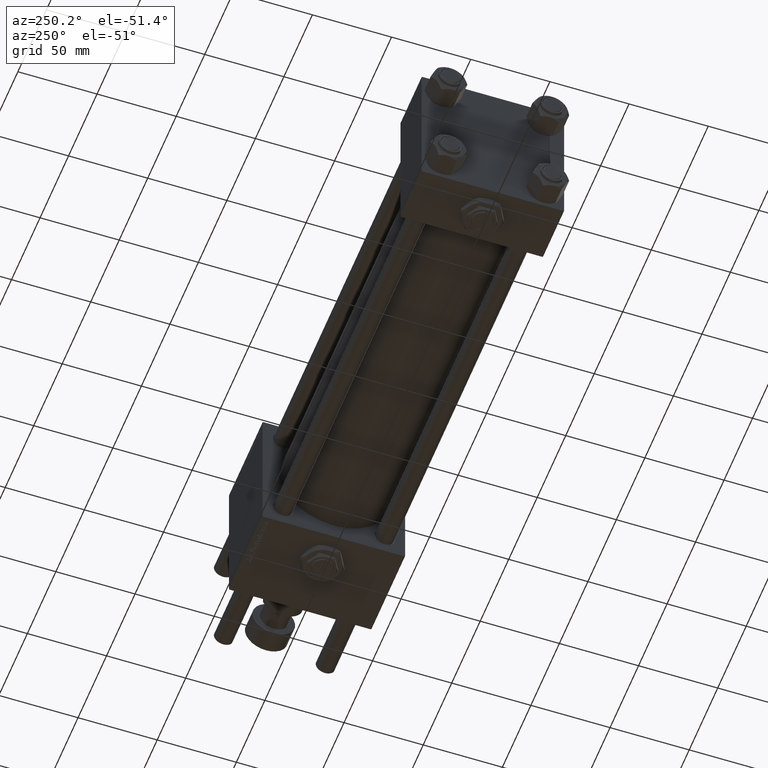
[diagram: clean part render]
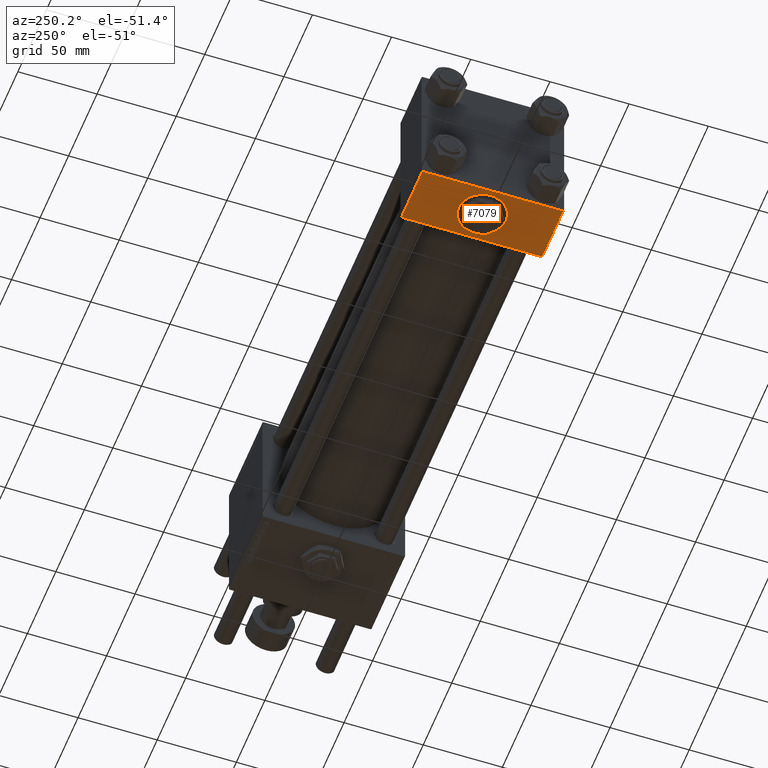
[diagram: same view with one face highlighted and labeled with its STEP entity id]
A machine part, auxiliary view. The second image highlights one B-rep face of the part: STEP entity #7079.
In plain terms, the highlighted planar face has unit normal (0, 0, -1).
Its self-contained STEP definition (entity closure, byte-faithful):
#483 = ORIENTED_EDGE ( 'NONE', *, *, #22725, .T. ) ;
#2574 = CARTESIAN_POINT ( 'NONE',  ( 0.000000000000000000, -44.49999999999998579, -45.00000000000000000 ) ) ;
#3128 = AXIS2_PLACEMENT_3D ( 'NONE', #45843, #17702, #8998 ) ;
#3738 = LINE ( 'NONE', #36092, #58834 ) ;
#3799 = PLANE ( 'NONE',  #50562 ) ;
#6224 = DIRECTION ( 'NONE',  ( 1.000000000000000000, 0.000000000000000000, 0.000000000000000000 ) ) ;
#7079 = ADVANCED_FACE ( 'NONE', ( #32559, #45134 ), #3799, .T. ) ;
#7952 = DIRECTION ( 'NONE',  ( -1.000000000000000000, 0.000000000000000000, 0.000000000000000000 ) ) ;
#8998 = DIRECTION ( 'NONE',  ( 0.000000000000000000, 1.000000000000000000, 0.000000000000000000 ) ) ;
#9233 = VERTEX_POINT ( 'NONE', #49581 ) ;
#11355 = DIRECTION ( 'NONE',  ( 0.000000000000000000, -1.000000000000000000, -1.541976423090495633E-16 ) ) ;
#12733 = VERTEX_POINT ( 'NONE', #17624 ) ;
#13006 = ORIENTED_EDGE ( 'NONE', *, *, #43771, .T. ) ;
#15579 = CIRCLE ( 'NONE', #3128, 15.00000000000000000 ) ;
#16110 = ORIENTED_EDGE ( 'NONE', *, *, #27585, .F. ) ;
#17624 = CARTESIAN_POINT ( 'NONE',  ( 37.00000000000000000, 44.49999999999998579, -44.99999999999998579 ) ) ;
#17702 = DIRECTION ( 'NONE',  ( 0.000000000000000000, -1.734723475976806848E-16, -1.000000000000000000 ) ) ;
#18479 = VECTOR ( 'NONE', #11355, 1000.000000000000000 ) ;
#22725 = EDGE_CURVE ( 'NONE', #9233, #12733, #24804, .T. ) ;
#23630 = VERTEX_POINT ( 'NONE', #51510 ) ;
#23942 = EDGE_LOOP ( 'NONE', ( #43750, #483, #13006, #53418 ) ) ;
#24368 = EDGE_CURVE ( 'NONE', #9233, #31767, #43423, .T. ) ;
#24804 = LINE ( 'NONE', #46968, #51886 ) ;
#27585 = EDGE_CURVE ( 'NONE', #23630, #35572, #15579, .T. ) ;
#28202 = EDGE_CURVE ( 'NONE', #35572, #23630, #56715, .T. ) ;
#28332 = CARTESIAN_POINT ( 'NONE',  ( 18.50000000000000355, 3.999741585953584033E-15, -44.99999999999999289 ) ) ;
#31767 = VERTEX_POINT ( 'NONE', #56193 ) ;
#32559 = FACE_BOUND ( 'NONE', #34468, .T. ) ;
#34468 = EDGE_LOOP ( 'NONE', ( #16110, #43099 ) ) ;
#35572 = VERTEX_POINT ( 'NONE', #54053 ) ;
#35868 = DIRECTION ( 'NONE',  ( 0.000000000000000000, 1.541976423090495880E-16, -1.000000000000000000 ) ) ;
#36092 = CARTESIAN_POINT ( 'NONE',  ( 37.00000000000000000, 44.99999999999998579, -44.99999999999998579 ) ) ;
#37412 = EDGE_CURVE ( 'NONE', #56270, #31767, #43326, .T. ) ;
#40587 = DIRECTION ( 'NONE',  ( 0.000000000000000000, -1.000000000000000000, -1.541976423090495633E-16 ) ) ;
#42114 = DIRECTION ( 'NONE',  ( 0.000000000000000000, -1.734723475976806848E-16, -1.000000000000000000 ) ) ;
#42162 = CARTESIAN_POINT ( 'NONE',  ( 37.00000000000000000, -44.49999999999995737, -45.00000000000000000 ) ) ;
#43099 = ORIENTED_EDGE ( 'NONE', *, *, #28202, .F. ) ;
#43326 = LINE ( 'NONE', #2574, #58980 ) ;
#43423 = LINE ( 'NONE', #56911, #18479 ) ;
#43750 = ORIENTED_EDGE ( 'NONE', *, *, #24368, .F. ) ;
#43771 = EDGE_CURVE ( 'NONE', #12733, #56270, #3738, .T. ) ;
#45134 = FACE_OUTER_BOUND ( 'NONE', #23942, .T. ) ;
#45843 = CARTESIAN_POINT ( 'NONE',  ( 18.50000000000000355, 3.999741585953584033E-15, -44.99999999999999289 ) ) ;
#46968 = CARTESIAN_POINT ( 'NONE',  ( 37.00000000000000000, 44.49999999999998579, -44.99999999999998579 ) ) ;
#48063 = AXIS2_PLACEMENT_3D ( 'NONE', #28332, #42114, #50789 ) ;
#49581 = CARTESIAN_POINT ( 'NONE',  ( 0.000000000000000000, 44.49999999999998579, -44.99999999999998579 ) ) ;
#50562 = AXIS2_PLACEMENT_3D ( 'NONE', #58624, #35868, #54128 ) ;
#50789 = DIRECTION ( 'NONE',  ( 0.000000000000000000, 1.000000000000000000, 0.000000000000000000 ) ) ;
#51510 = CARTESIAN_POINT ( 'NONE',  ( 18.50000000000000355, 15.00000000000000355, -44.99999999999999289 ) ) ;
#51886 = VECTOR ( 'NONE', #6224, 1000.000000000000000 ) ;
#53418 = ORIENTED_EDGE ( 'NONE', *, *, #37412, .T. ) ;
#54053 = CARTESIAN_POINT ( 'NONE',  ( 18.50000000000000711, -14.99999999999999645, -44.99999999999999289 ) ) ;
#54128 = DIRECTION ( 'NONE',  ( 0.000000000000000000, 1.000000000000000000, 1.541976423090495880E-16 ) ) ;
#56193 = CARTESIAN_POINT ( 'NONE',  ( 0.000000000000000000, -44.49999999999995737, -45.00000000000000000 ) ) ;
#56270 = VERTEX_POINT ( 'NONE', #42162 ) ;
#56715 = CIRCLE ( 'NONE', #48063, 15.00000000000000000 ) ;
#56911 = CARTESIAN_POINT ( 'NONE',  ( 0.000000000000000000, 44.99999999999998579, -44.99999999999998579 ) ) ;
#58624 = CARTESIAN_POINT ( 'NONE',  ( 37.00000000000000000, 44.99999999999998579, -44.99999999999998579 ) ) ;
#58834 = VECTOR ( 'NONE', #40587, 1000.000000000000000 ) ;
#58980 = VECTOR ( 'NONE', #7952, 1000.000000000000000 ) ;